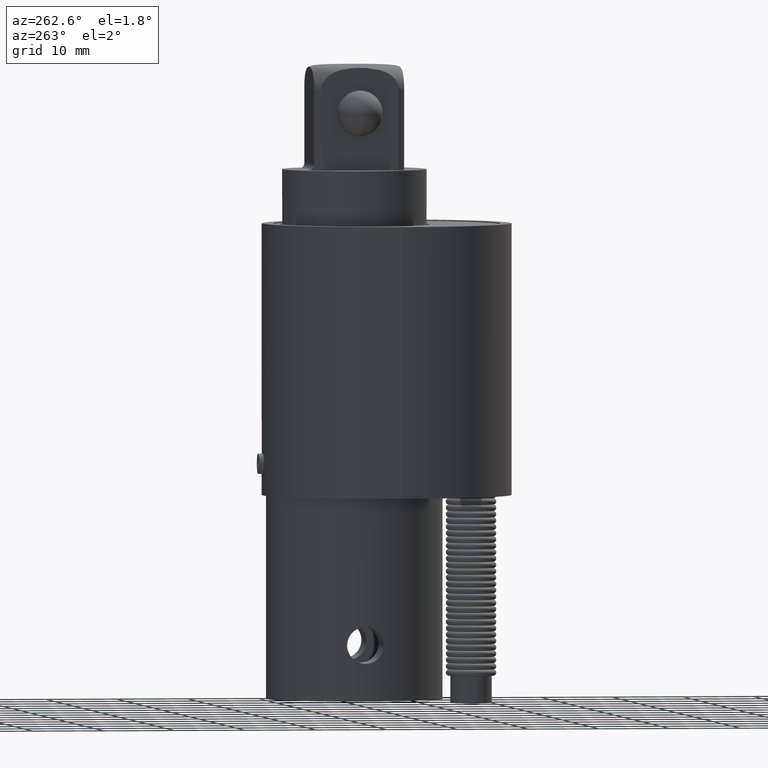
[diagram: clean part render]
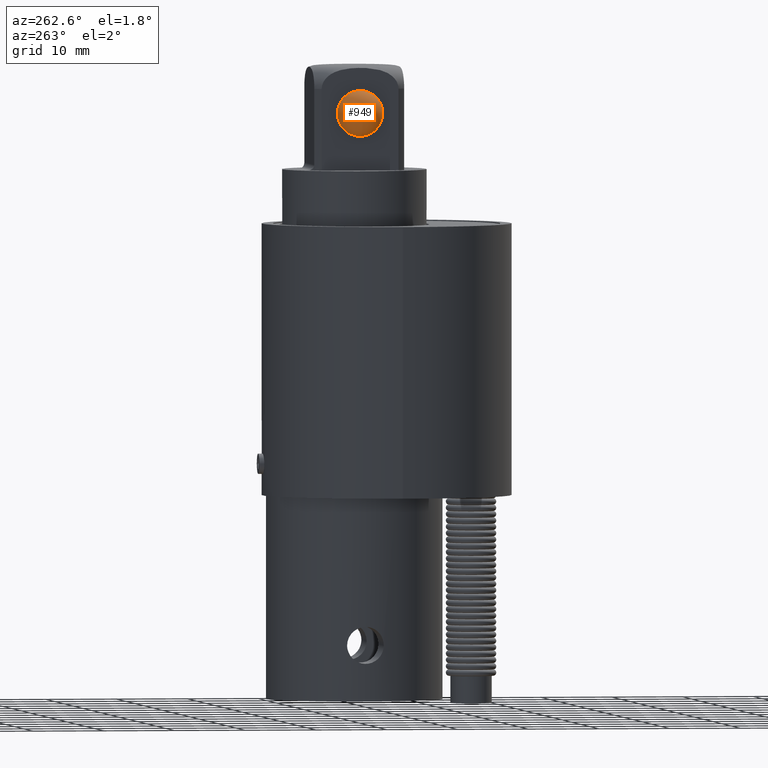
[diagram: same view with one face highlighted and labeled with its STEP entity id]
A machine part, auxiliary view. The second image highlights one B-rep face of the part: STEP entity #949.
In plain terms, the highlighted spherical surface has radius 3.2131 mm.
Its self-contained STEP definition (entity closure, byte-faithful):
#933=CARTESIAN_POINT('',(7.560735023022724,3.768497579026910,1.427431806677398));
#934=DIRECTION('',(1.0,0.0,0.0));
#935=DIRECTION('',(0.0,0.0,-1.0));
#936=AXIS2_PLACEMENT_3D('',#933,#934,#935);
#937=SPHERICAL_SURFACE('',#936,0.126500000000000);
#938=CARTESIAN_POINT('',(7.560735023022723,3.894997579026912,1.427431806677397));
#939=VERTEX_POINT('',#938);
#940=CARTESIAN_POINT('',(7.560735023022723,3.768497579026912,1.427431806677397));
#941=DIRECTION('',(1.0,0.0,0.0));
#942=DIRECTION('',(0.0,-1.0,0.0));
#943=AXIS2_PLACEMENT_3D('',#940,#941,#942);
#944=CIRCLE('',#943,0.126500000000000);
#945=EDGE_CURVE('',#939,#939,#944,.T.);
#946=ORIENTED_EDGE('',*,*,#945,.F.);
#947=EDGE_LOOP('',(#946));
#948=FACE_OUTER_BOUND('',#947,.T.);
#949=ADVANCED_FACE('',(#948),#937,.T.);